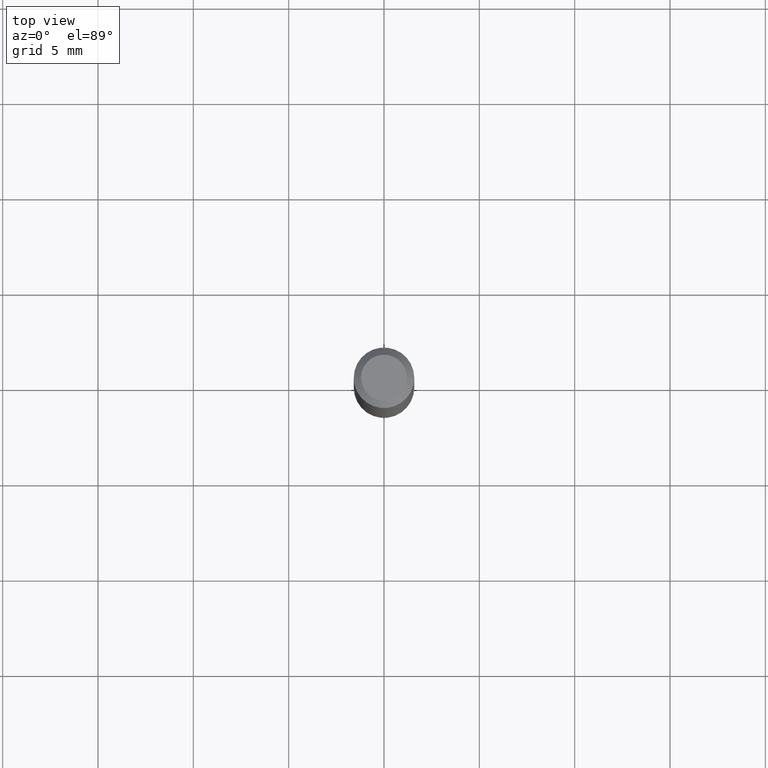
[diagram: clean part render]
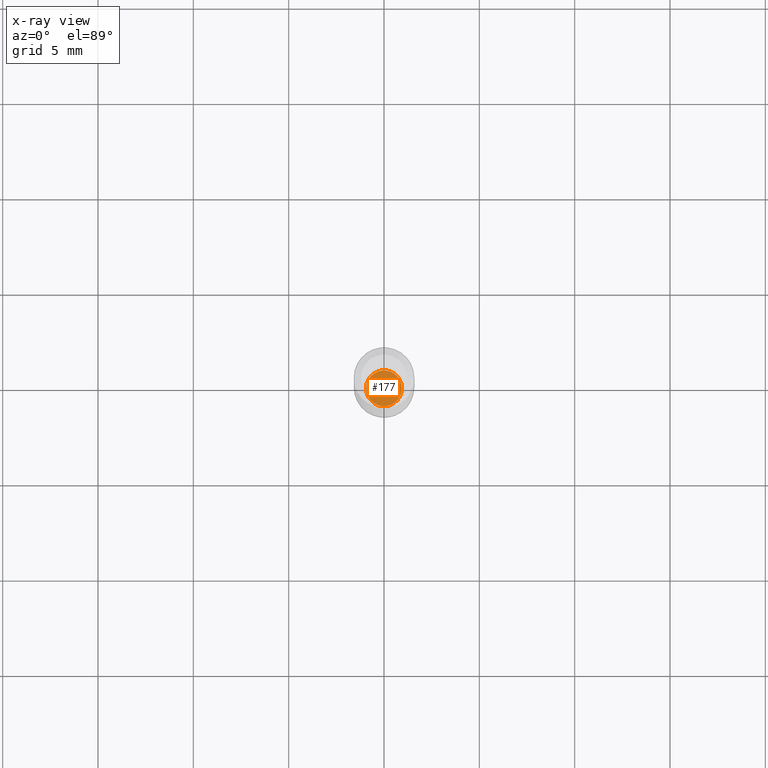
[diagram: x-ray — body ghosted, one internal face saturated and labeled with its STEP entity id]
A machine part, top view, then the same camera in x-ray: the body is ghosted and one INTERNAL B-rep face — a face not visible from any outside direction — is saturated and labeled: STEP entity #177.
In plain terms, the highlighted planar face has unit normal (-0, 0, 1).
Its self-contained STEP definition (entity closure, byte-faithful):
#8 = VERTEX_POINT ( 'NONE', #198 ) ;
#41 = CARTESIAN_POINT ( 'NONE',  ( 3.117972727886050170E-29, -4.451638707025012383E-15, -1.275000000000000577 ) ) ;
#64 = EDGE_CURVE ( 'NONE', #375, #8, #435, .T. ) ;
#95 = EDGE_LOOP ( 'NONE', ( #490, #286 ) ) ;
#96 = PLANE ( 'NONE',  #360 ) ;
#99 = AXIS2_PLACEMENT_3D ( 'NONE', #409, #292, #492 ) ;
#125 = EDGE_CURVE ( 'NONE', #8, #375, #472, .T. ) ;
#177 = ADVANCED_FACE ( 'NONE', ( #301 ), #96, .F. ) ;
#198 = CARTESIAN_POINT ( 'NONE',  ( -0.03699999999999999817, -4.186088667619663091E-15, -1.275000000000000577 ) ) ;
#239 = AXIS2_PLACEMENT_3D ( 'NONE', #41, #359, #325 ) ;
#249 = DIRECTION ( 'NONE',  ( 1.000000000000000000, -6.982962677686265922E-15, 4.876176775795935793E-29 ) ) ;
#286 = ORIENTED_EDGE ( 'NONE', *, *, #125, .F. ) ;
#292 = DIRECTION ( 'NONE',  ( -2.445468806185136597E-29, 3.491481338843145583E-15, 1.000000000000000000 ) ) ;
#301 = FACE_OUTER_BOUND ( 'NONE', #95, .T. ) ;
#325 = DIRECTION ( 'NONE',  ( 1.000000000000000000, -6.982962677686254089E-15, 0.000000000000000000 ) ) ;
#359 = DIRECTION ( 'NONE',  ( -2.445468806185136597E-29, 3.491481338843145583E-15, 1.000000000000000000 ) ) ;
#360 = AXIS2_PLACEMENT_3D ( 'NONE', #447, #378, #249 ) ;
#375 = VERTEX_POINT ( 'NONE', #487 ) ;
#378 = DIRECTION ( 'NONE',  ( -2.438088387897960049E-29, 3.491481338843145188E-15, 1.000000000000000000 ) ) ;
#409 = CARTESIAN_POINT ( 'NONE',  ( 3.117972727886050170E-29, -4.451638707025012383E-15, -1.275000000000000577 ) ) ;
#435 = CIRCLE ( 'NONE', #239, 0.03699999999999999817 ) ;
#447 = CARTESIAN_POINT ( 'NONE',  ( 3.117972727886050170E-29, -4.451638707025012383E-15, -1.275000000000000577 ) ) ;
#472 = CIRCLE ( 'NONE', #99, 0.03699999999999999817 ) ;
#487 = CARTESIAN_POINT ( 'NONE',  ( 0.03699999999999999817, -4.710008326099403589E-15, -1.275000000000000577 ) ) ;
#490 = ORIENTED_EDGE ( 'NONE', *, *, #64, .F. ) ;
#492 = DIRECTION ( 'NONE',  ( 1.000000000000000000, -6.982962677686254089E-15, 0.000000000000000000 ) ) ;